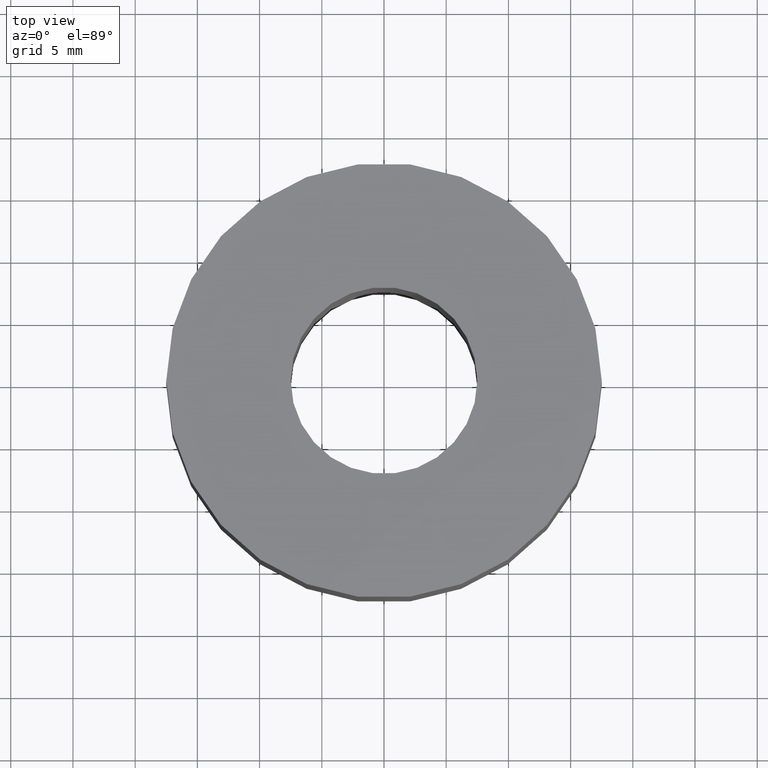
[diagram: clean part render]
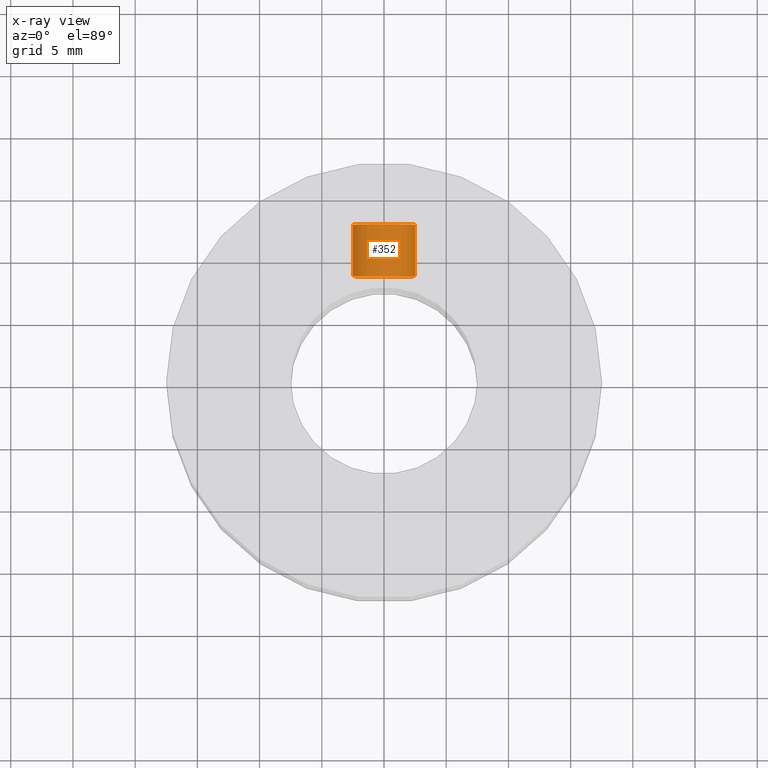
[diagram: x-ray — body ghosted, one internal face saturated and labeled with its STEP entity id]
A machine part, top view, then the same camera in x-ray: the body is ghosted and one INTERNAL B-rep face — a face not visible from any outside direction — is saturated and labeled: STEP entity #352.
In plain terms, the highlighted cylindrical surface (bore or boss wall) has radius 2.5 mm, axis along (0, 1, 0).
Its self-contained STEP definition (entity closure, byte-faithful):
#352 = ADVANCED_FACE( '', ( #443, #444 ), #445, .T. );
#443 = FACE_OUTER_BOUND( '', #536, .T. );
#444 = FACE_OUTER_BOUND( '', #537, .T. );
#445 = CYLINDRICAL_SURFACE( '', #538, 2.50000000000000 );
#536 = EDGE_LOOP( '', ( #748 ) );
#537 = EDGE_LOOP( '', ( #749 ) );
#538 = AXIS2_PLACEMENT_3D( '', #750, #751, #752 );
#748 = ORIENTED_EDGE( '', *, *, #794, .T. );
#749 = ORIENTED_EDGE( '', *, *, #815, .F. );
#750 = CARTESIAN_POINT( '', ( 4.53392180753521E-016, 7.60445622475296, -27.0000000000000 ) );
#751 = DIRECTION( '', ( 6.12323399573677E-017, 1.00000000000000, -0.000000000000000 ) );
#752 = DIRECTION( '', ( 1.00000000000000, -6.12323399573677E-017, 0.000000000000000 ) );
#794 = EDGE_CURVE( '', #880, #880, #881, .T. );
#815 = EDGE_CURVE( '', #914, #914, #915, .T. );
#880 = VERTEX_POINT( '', #1246 );
#881 = CIRCLE( '', #1247, 2.50000000000000 );
#914 = VERTEX_POINT( '', #1322 );
#915 = CIRCLE( '', #1323, 2.50000000000000 );
#1246 = CARTESIAN_POINT( '', ( 2.50000000000000, 12.9794562247530, -27.0000000000000 ) );
#1247 = AXIS2_PLACEMENT_3D( '', #1375, #1376, #1377 );
#1322 = CARTESIAN_POINT( '', ( 2.50000000000000, 8.85445622475297, -27.0000000000000 ) );
#1323 = AXIS2_PLACEMENT_3D( '', #1393, #1394, #1395 );
#1375 = CARTESIAN_POINT( '', ( 7.82516008024372E-016, 12.9794562247530, -27.0000000000000 ) );
#1376 = DIRECTION( '', ( -6.12323399573677E-017, -1.00000000000000, 0.000000000000000 ) );
#1377 = DIRECTION( '', ( 1.00000000000000, -6.12323399573677E-017, 0.000000000000000 ) );
#1393 = CARTESIAN_POINT( '', ( 5.29932605700230E-016, 8.85445622475297, -27.0000000000000 ) );
#1394 = DIRECTION( '', ( -6.12323399573677E-017, -1.00000000000000, 0.000000000000000 ) );
#1395 = DIRECTION( '', ( 1.00000000000000, -6.12323399573677E-017, 0.000000000000000 ) );